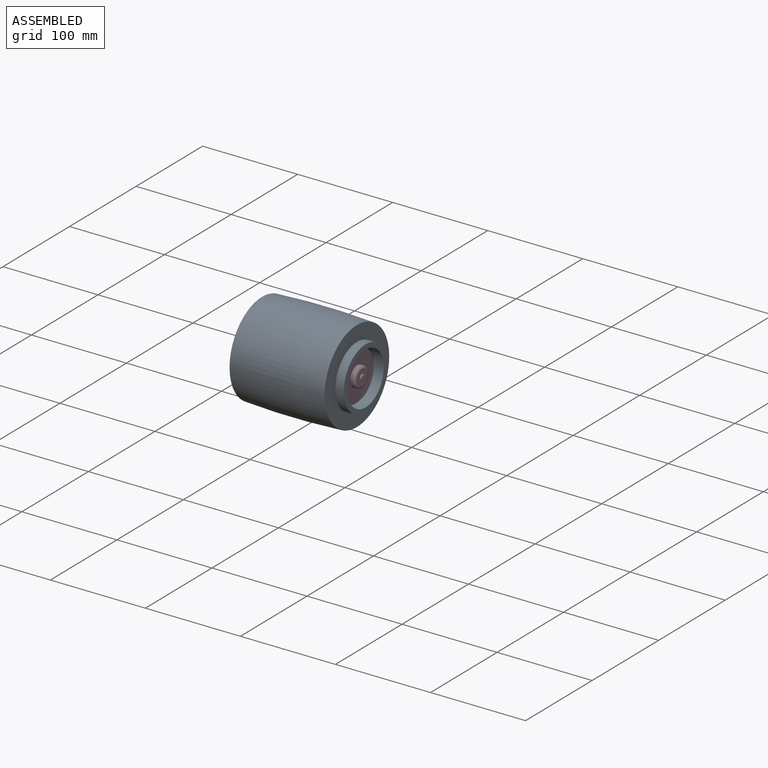
[diagram: assembled view]
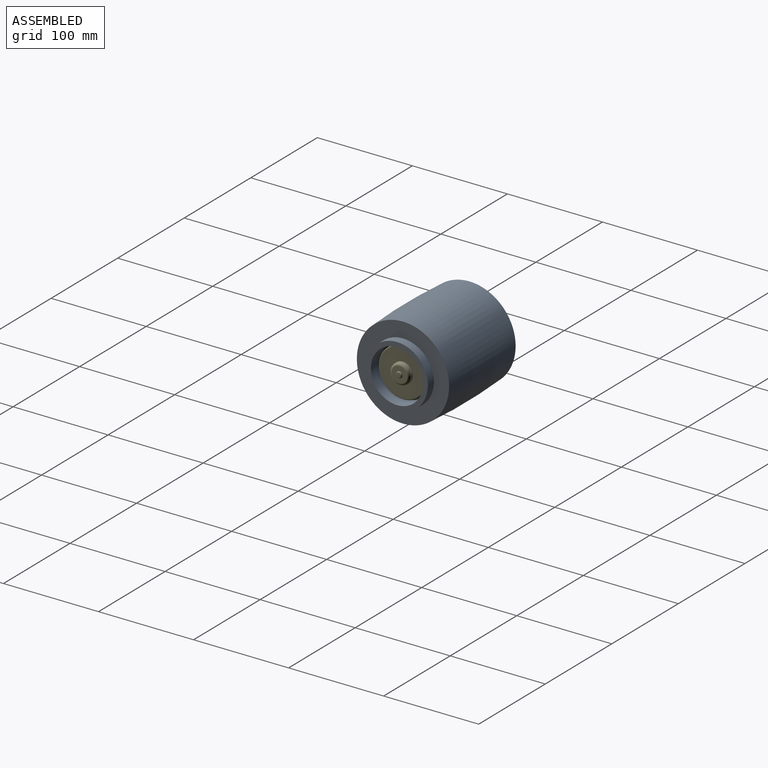
[diagram: assembled view, second angle]
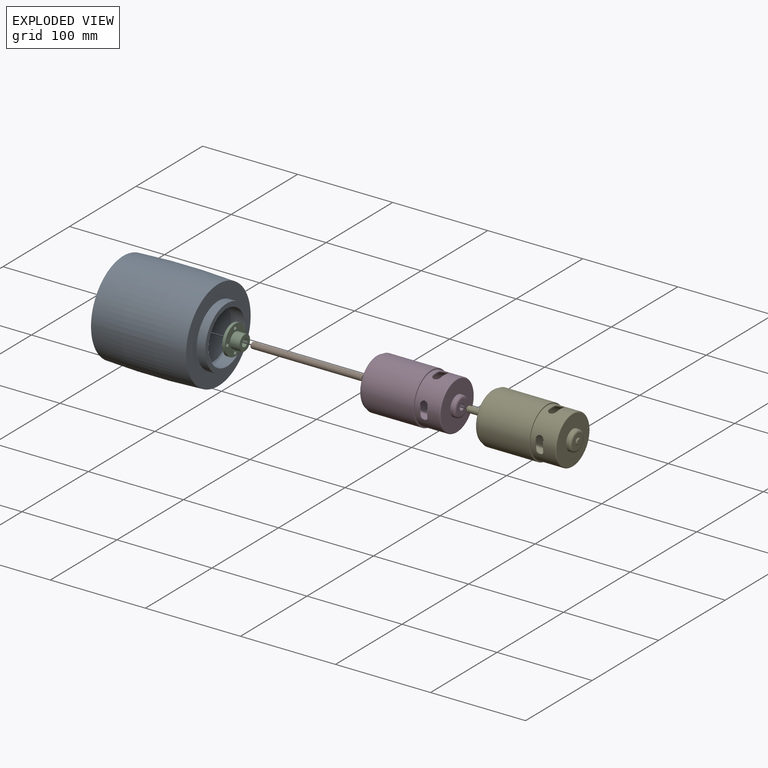
[diagram: exploded view]
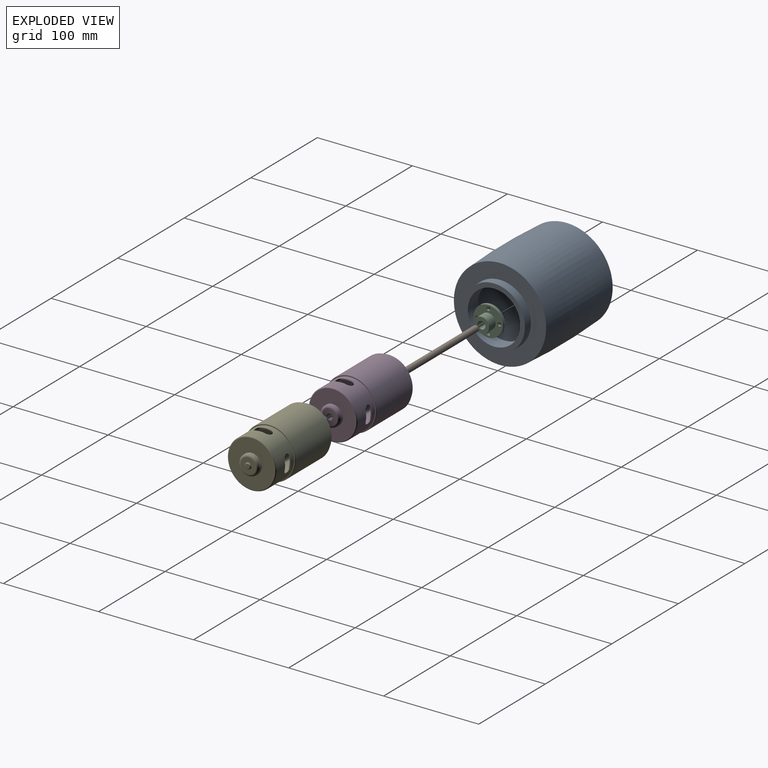
[diagram: exploded view, second angle]
FCSTD DOCUMENT  (FreeCAD 0.22R37898 (Git))
Label: hub 997
License: All rights reserved
LicenseURL: http://en.wikipedia.org/wiki/All_rights_reserved
objects: App::Link×4, Part::Feature×3, Sketcher::SketchObject×1, PartDesign::Revolution×1, PartDesign::Body×1, App::Part×1, Part::FeaturePython×1, Part::Box×1, Part::Cut×1
note: 10 computed .brp shape members not serialized (recipe doc carries the construction recipe); baked Part::Feature solids carry a one-line shape summary decoded from their .brp

FEATURE [Sketcher::SketchObject] Sketch007
  AttachmentSupport = -> [XZ_Plane002]
  FullyConstrained = true
  MapMode = 5
  Placement = pos=(0,0,0) rot=(1,0,0;1.5708rad)
  expr: Constraints[28] = 32.5 mm
  sketch-geometry (15):
    g0: LineSegment StartX=15 StartY=32.5 StartZ=0 EndX=15 EndY=48.5 EndZ=0
    g1: ArcOfCircle CenterX=-35 CenterY=-784.083 CenterZ=0 NormalX=0 NormalY=0 NormalZ=1 AngleXU=0 Radius=834.083 StartAngle=1.51081 EndAngle=1.63078
    g2: LineSegment StartX=-35 StartY=0 StartZ=0 EndX=-35 EndY=50 EndZ=0
    g3: LineSegment StartX=-94 StartY=15.6 StartZ=0 EndX=-89 EndY=15.6 EndZ=0
    g4: LineSegment StartX=-89 StartY=15.6 StartZ=0 EndX=-89 EndY=8.1 EndZ=0
    g5: LineSegment StartX=-89 StartY=8.1 StartZ=0 EndX=-79 EndY=8.1 EndZ=0
    g6: LineSegment StartX=-79 StartY=8.1 StartZ=0 EndX=-79 EndY=43.5 EndZ=0
    g7: LineSegment StartX=-94 StartY=15.6 StartZ=0 EndX=-94 EndY=32.5 EndZ=0
    g8: LineSegment StartX=-94 StartY=32.5 StartZ=0 EndX=-85 EndY=32.5 EndZ=0
    g9: LineSegment StartX=-85 StartY=32.5 StartZ=0 EndX=-85 EndY=48.5 EndZ=0
    g10: LineSegment StartX=-79 StartY=43.5 StartZ=0 EndX=9 EndY=43.5 EndZ=0
    g11: LineSegment StartX=9 StartY=43.5 StartZ=0 EndX=9 EndY=27.5 EndZ=0
    g12: LineSegment StartX=9 StartY=27.5 StartZ=0 EndX=24 EndY=27.5 EndZ=0
    g13: LineSegment StartX=24 StartY=27.5 StartZ=0 EndX=24 EndY=32.5 EndZ=0
    g14: LineSegment StartX=24 StartY=32.5 StartZ=0 EndX=15 EndY=32.5 EndZ=0
  constraints (47):
    c: Vertical(g0)
    c: Distance(g1,g0) = 100
    c: Coincident(g1,g0)
    c: PointOnObject(g2,g1)
    c: Perpendicular(g1,g2)
    c: DistanceY(g2,g2) = 50
    c: Horizontal(g3)
    c: Coincident(g4,g3)
    c: Vertical(g4)
    c: Coincident(g5,g4)
    c: Horizontal(g5)
    c: Coincident(g6,g5)
    c: Vertical(g6)
    c: PointOnObject(g2,g-1)
    c: DistanceY(g-1,g3) = 15.6
    c: DistanceY(g-1,g4) = 8.1
    c: DistanceY(g1,g2) = 1.5
    c: Vertical(g2)
    c: DistanceX(g-1,g0) = 15
    c: Vertical(g7)
    c: Coincident(g8,g7)
    c: Coincident(g9,g8)
    c: Coincident(g9,g1)
    c: Vertical(g9)
    c: Horizontal(g8)
    c: DistanceX(g8,g8) = 9
    c: Coincident(g7,g3)
    c: DistanceX(g5,g5) = 10
    c: DistanceY(g-1,g7) = 32.5
    c: Coincident(g10,g6)
    c: Horizontal(g10)
    c: Coincident(g11,g10)
    c: Vertical(g11)
    c: Coincident(g12,g11)
    c: Horizontal(g12)
    c: Coincident(g13,g12)
    c: Coincident(g14,g13)
    c: Horizontal(g14)
    c: Coincident(g14,g0)
    c: Vertical(g13)
    c: DistanceX(g10,g0) = 6
    c: Equal(g0,g9)
    c: DistanceY(g13,g13) = 5
    c: Horizontal(g0,g1)
    c: DistanceY(g10,g0) = 5
    c: Equal(g14,g8)
    c: DistanceX(g1,g6) = 6
FEATURE [PartDesign::Revolution] Revolution004
  Angle = 360
  Angle2 = 60
  Axis = (1,0,0)
  Base = (0,0,0)
  Placement = pos=(0,0,0) rot=(1,0,0;1.5708rad)
  Profile = -> Sketch007
  ReferenceAxis = -> Sketch007 [H_Axis]
  Suppressed = false
  Type = 0
FEATURE [PartDesign::Body] Body002  label="Pulley"
  AllowCompound = false
  Group = -> [Sketch007,Revolution004]
  Origin = -> Origin002
  Placement = pos=(27.5,0,0) rot=(0,0,1;0rad)
  Tip = -> Revolution004
FEATURE [Part::Feature] Part__Feature  label="Body"
  shape: bbox 95.5 x 58.12 x 58.12 mm, 38 faces (baked)
FEATURE [Part::Feature] Part__Feature001  label="Axis"
  shape: bbox 116.8 x 6.873 x 6.873 mm, 5 faces (baked)
FEATURE [App::Part] _97_DC_motor1
  Group = -> [Part__Feature,Part__Feature001]
  Origin = -> Origin
FEATURE [Part::Feature] Part__Feature002  label="Coupler flange"
  Placement = pos=(-61.5,0,-1.37e-14) rot=(0,1,0;4.71239rad)
  shape: bbox 13 x 31 x 31 mm, 10 faces (baked)
FEATURE [App::Link] Body002_CutLink
  LinkTransform = true
  LinkedObject = -> Body002
FEATURE [App::Link] Part__Feature_CutLink
  LinkTransform = true
  LinkedObject = -> Part__Feature
FEATURE [App::Link] Part__Feature001_CutLink
  LinkTransform = true
  LinkedObject = -> Part__Feature001
FEATURE [App::Link] Part__Feature002_CutLink
  LinkTransform = true
  LinkedObject = -> Part__Feature002
FEATURE [Part::FeaturePython] SectionCutCompound  # WARN: FeaturePython — macro-defined, semantics opaque (R4)
  Mode = 0
  Objects = -> [Body002_CutLink,Part__Feature_CutLink,Part__Feature001_CutLink,Part__Feature002_CutLink]
  Tolerance = 0
FEATURE [Part::Box] SectionCutBoxY
  AttacherType = Attacher::AttachEngine3D
  Height = 101
  Length = 120.25
  Placement = pos=(-68.25,-101,-50.5) rot=(0,0,1;0rad)
  Width = 101
FEATURE [Part::Cut] SectionCutY
  Base = -> SectionCutCompound
  Tool = -> SectionCutBoxY
